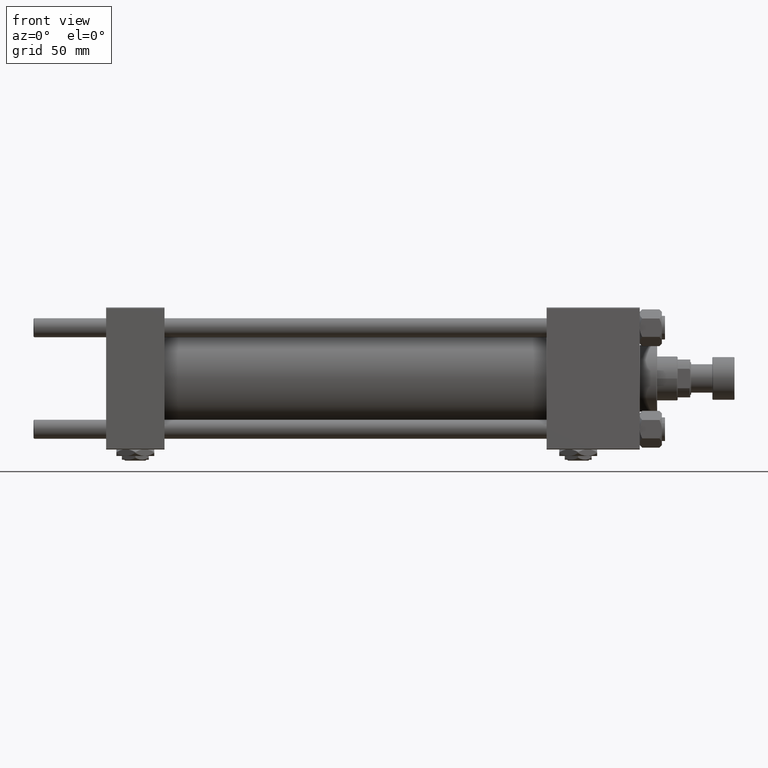
[diagram: clean part render]
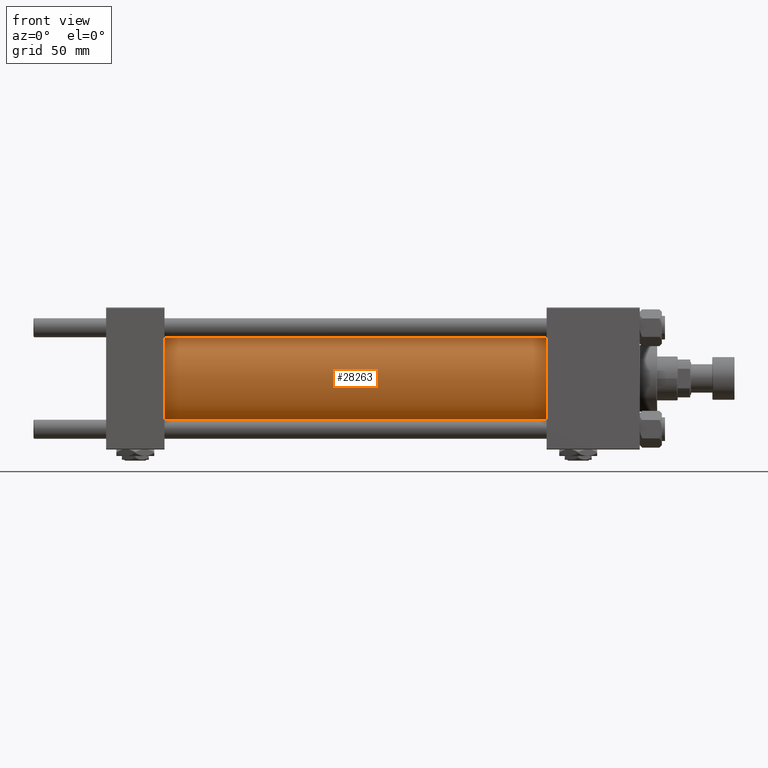
[diagram: same view with one face highlighted and labeled with its STEP entity id]
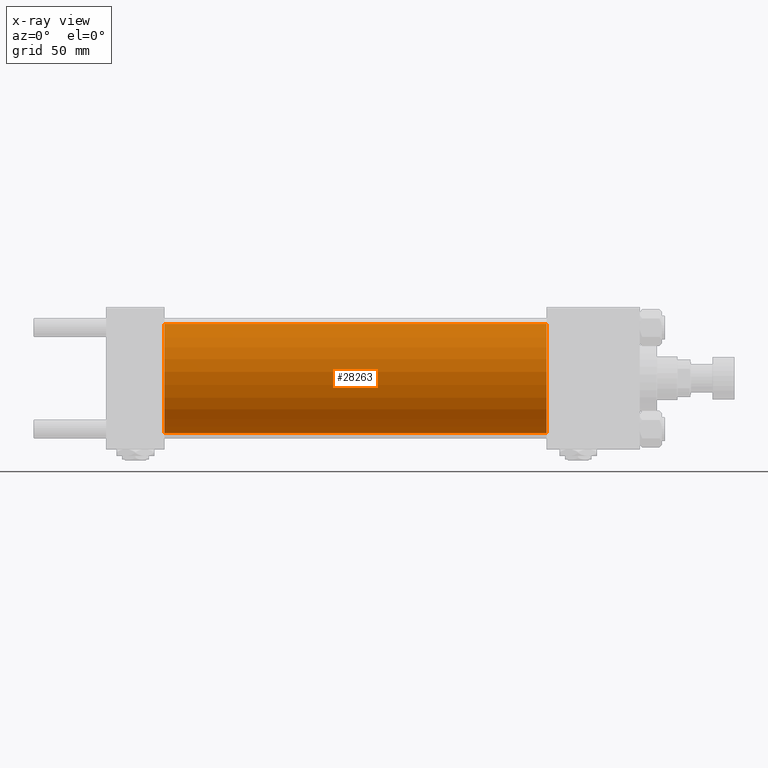
[diagram: x-ray of the same camera — body ghosted, the highlighted face saturated]
A machine part, front view. The second image highlights one B-rep face of the part: STEP entity #28263.
The next image is the same camera in x-ray: the body ghosted, the highlighted face saturated — about 0% of this face is hidden behind the body in this view.
In plain terms, the highlighted cylindrical surface (partial cylindrical patch) has radius 34.5 mm, axis along (-1, -0, -0).
Its self-contained STEP definition (entity closure, byte-faithful):
#1998 = EDGE_CURVE ( 'NONE', #37193, #29336, #44177, .T. ) ;
#2859 = VECTOR ( 'NONE', #46722, 1000.000000000000000 ) ;
#4144 = DIRECTION ( 'NONE',  ( -1.000000000000000000, -0.000000000000000000, -0.000000000000000000 ) ) ;
#4667 = FACE_OUTER_BOUND ( 'NONE', #36565, .T. ) ;
#5014 = DIRECTION ( 'NONE',  ( 0.000000000000000000, 0.000000000000000000, -1.000000000000000000 ) ) ;
#7310 = LINE ( 'NONE', #38780, #2859 ) ;
#8011 = LINE ( 'NONE', #47681, #15322 ) ;
#9762 = VERTEX_POINT ( 'NONE', #31000 ) ;
#10285 = ORIENTED_EDGE ( 'NONE', *, *, #51937, .T. ) ;
#10836 = CARTESIAN_POINT ( 'NONE',  ( 37.00000000000000711, 4.225031457058367344E-15, -34.49999999999999289 ) ) ;
#11456 = DIRECTION ( 'NONE',  ( -1.000000000000000000, -0.000000000000000000, -0.000000000000000000 ) ) ;
#15322 = VECTOR ( 'NONE', #11456, 1000.000000000000000 ) ;
#19996 = DIRECTION ( 'NONE',  ( 0.000000000000000000, 0.000000000000000000, 1.000000000000000000 ) ) ;
#21142 = DIRECTION ( 'NONE',  ( 1.000000000000000000, 0.000000000000000000, 0.000000000000000000 ) ) ;
#23640 = CARTESIAN_POINT ( 'NONE',  ( 37.00000000000000711, 0.000000000000000000, 0.000000000000000000 ) ) ;
#24538 = VERTEX_POINT ( 'NONE', #10836 ) ;
#27357 = ORIENTED_EDGE ( 'NONE', *, *, #1998, .F. ) ;
#28077 = AXIS2_PLACEMENT_3D ( 'NONE', #31893, #4144, #19996 ) ;
#28124 = AXIS2_PLACEMENT_3D ( 'NONE', #49187, #21142, #5014 ) ;
#28263 = ADVANCED_FACE ( 'NONE', ( #4667 ), #40108, .T. ) ;
#28391 = DIRECTION ( 'NONE',  ( 1.000000000000000000, -0.000000000000000000, 0.000000000000000000 ) ) ;
#29336 = VERTEX_POINT ( 'NONE', #46775 ) ;
#30589 = EDGE_CURVE ( 'NONE', #29336, #24538, #7310, .T. ) ;
#31000 = CARTESIAN_POINT ( 'NONE',  ( 37.00000000000000711, 0.000000000000000000, 34.49999999999999289 ) ) ;
#31893 = CARTESIAN_POINT ( 'NONE',  ( 278.9999999999999432, 0.000000000000000000, 0.000000000000000000 ) ) ;
#36565 = EDGE_LOOP ( 'NONE', ( #40168, #27357, #10285, #49337 ) ) ;
#37193 = VERTEX_POINT ( 'NONE', #50592 ) ;
#38780 = CARTESIAN_POINT ( 'NONE',  ( 278.9999999999999432, 4.225031457058367344E-15, -34.49999999999999289 ) ) ;
#40108 = CYLINDRICAL_SURFACE ( 'NONE', #28077, 34.49999999999999289 ) ;
#40168 = ORIENTED_EDGE ( 'NONE', *, *, #30589, .F. ) ;
#42162 = CIRCLE ( 'NONE', #49751, 34.49999999999999289 ) ;
#42513 = EDGE_CURVE ( 'NONE', #9762, #24538, #42162, .T. ) ;
#44177 = CIRCLE ( 'NONE', #28124, 34.49999999999999289 ) ;
#44270 = DIRECTION ( 'NONE',  ( 0.000000000000000000, 0.000000000000000000, 1.000000000000000000 ) ) ;
#46722 = DIRECTION ( 'NONE',  ( -1.000000000000000000, -0.000000000000000000, -0.000000000000000000 ) ) ;
#46775 = CARTESIAN_POINT ( 'NONE',  ( 278.9999999999999432, 4.225031457058367344E-15, -34.49999999999999289 ) ) ;
#47681 = CARTESIAN_POINT ( 'NONE',  ( 278.9999999999999432, 0.000000000000000000, 34.49999999999999289 ) ) ;
#49187 = CARTESIAN_POINT ( 'NONE',  ( 278.9999999999999432, 0.000000000000000000, 0.000000000000000000 ) ) ;
#49337 = ORIENTED_EDGE ( 'NONE', *, *, #42513, .T. ) ;
#49751 = AXIS2_PLACEMENT_3D ( 'NONE', #23640, #28391, #44270 ) ;
#50592 = CARTESIAN_POINT ( 'NONE',  ( 278.9999999999999432, 0.000000000000000000, 34.49999999999999289 ) ) ;
#51937 = EDGE_CURVE ( 'NONE', #37193, #9762, #8011, .T. ) ;